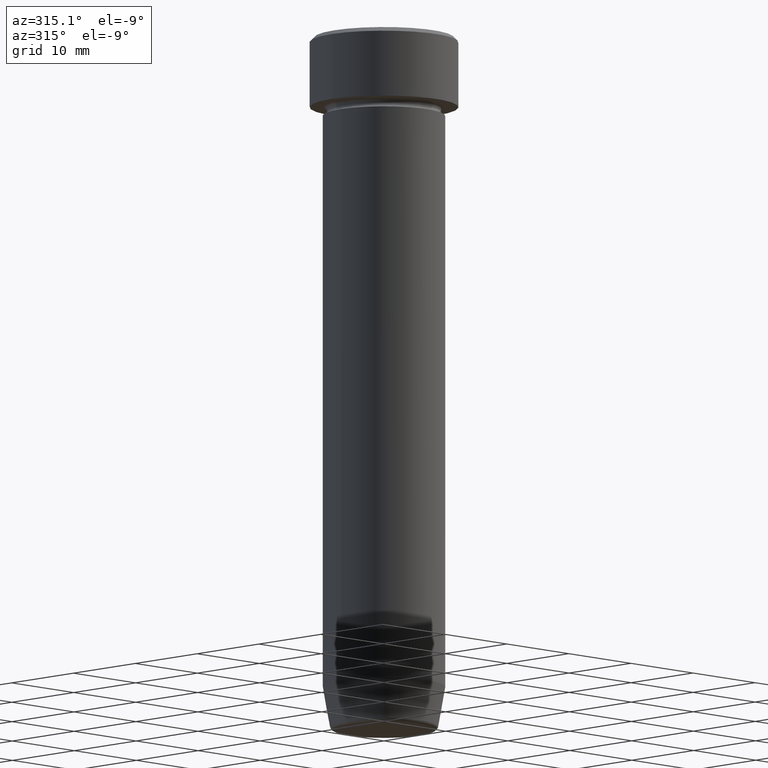
[diagram: clean part render]
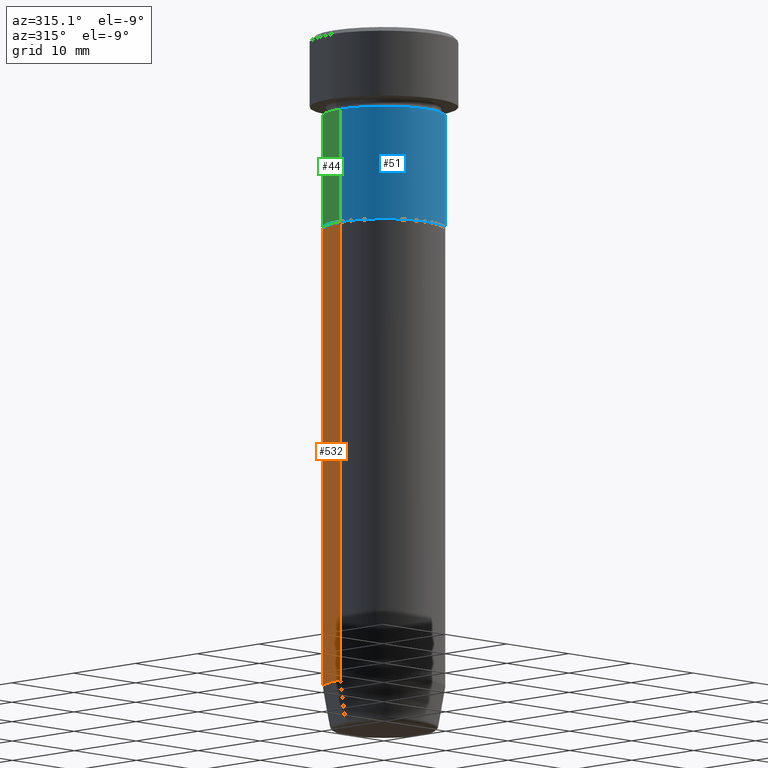
[diagram: same view with three faces highlighted in distinct colors, each labeled with its STEP entity id]
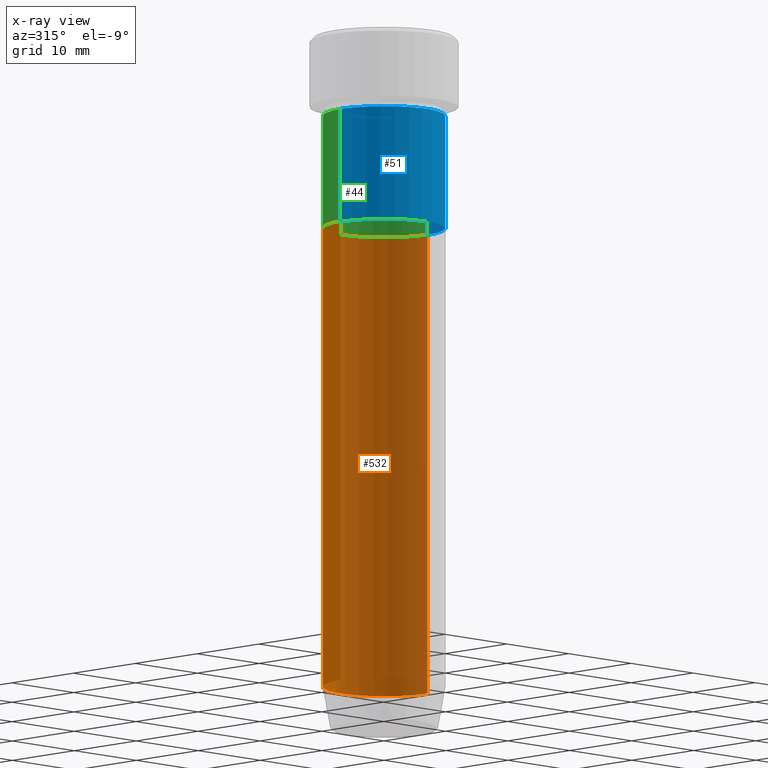
[diagram: x-ray of the same camera — body ghosted, the three highlighted faces saturated]
A machine part, auxiliary view with three faces highlighted in distinct colors.
The next image is the same camera in x-ray (body ghosted, the three faces saturated) — at least one of them is partly hidden behind the body in this view.
Their STEP definitions:

[orange] entity #532 — the highlighted cylindrical surface (partial cylindrical patch) has radius 7 mm, axis along (-0, -0, 1).
#24 = CARTESIAN_POINT ( 'NONE',  ( -6.999999999999999112, 8.572527594031472204E-16, -75.00000000000000000 ) ) ;
#35 = ORIENTED_EDGE ( 'NONE', *, *, #419, .F. ) ;
#39 = AXIS2_PLACEMENT_3D ( 'NONE', #230, #378, #380 ) ;
#41 = CARTESIAN_POINT ( 'NONE',  ( -6.999999999999999112, 8.572527594031472204E-16, 0.000000000000000000 ) ) ;
#74 = DIRECTION ( 'NONE',  ( 1.000000000000000000, 0.000000000000000000, 0.000000000000000000 ) ) ;
#133 = VECTOR ( 'NONE', #576, 1000.000000000000000 ) ;
#134 = EDGE_CURVE ( 'NONE', #276, #158, #207, .T. ) ;
#154 = VERTEX_POINT ( 'NONE', #24 ) ;
#158 = VERTEX_POINT ( 'NONE', #241 ) ;
#167 = CARTESIAN_POINT ( 'NONE',  ( 6.999999999999999112, 0.000000000000000000, -22.00000000000000000 ) ) ;
#178 = CYLINDRICAL_SURFACE ( 'NONE', #580, 6.999999999999999112 ) ;
#187 = LINE ( 'NONE', #377, #133 ) ;
#188 = DIRECTION ( 'NONE',  ( -0.000000000000000000, -0.000000000000000000, 1.000000000000000000 ) ) ;
#207 = CIRCLE ( 'NONE', #567, 6.999999999999999112 ) ;
#230 = CARTESIAN_POINT ( 'NONE',  ( 0.000000000000000000, 0.000000000000000000, -75.00000000000000000 ) ) ;
#241 = CARTESIAN_POINT ( 'NONE',  ( -6.999999999999999112, 8.572527594031472204E-16, -22.00000000000000000 ) ) ;
#242 = DIRECTION ( 'NONE',  ( 1.000000000000000000, 0.000000000000000000, 0.000000000000000000 ) ) ;
#273 = EDGE_LOOP ( 'NONE', ( #507, #503, #504, #35 ) ) ;
#276 = VERTEX_POINT ( 'NONE', #167 ) ;
#348 = DIRECTION ( 'NONE',  ( -0.000000000000000000, -0.000000000000000000, 1.000000000000000000 ) ) ;
#373 = CARTESIAN_POINT ( 'NONE',  ( 0.000000000000000000, 0.000000000000000000, 0.000000000000000000 ) ) ;
#377 = CARTESIAN_POINT ( 'NONE',  ( 6.999999999999999112, 0.000000000000000000, 0.000000000000000000 ) ) ;
#378 = DIRECTION ( 'NONE',  ( -0.000000000000000000, -0.000000000000000000, 1.000000000000000000 ) ) ;
#380 = DIRECTION ( 'NONE',  ( 1.000000000000000000, 0.000000000000000000, 0.000000000000000000 ) ) ;
#419 = EDGE_CURVE ( 'NONE', #488, #276, #187, .T. ) ;
#458 = EDGE_CURVE ( 'NONE', #154, #158, #482, .T. ) ;
#472 = VECTOR ( 'NONE', #348, 1000.000000000000000 ) ;
#482 = LINE ( 'NONE', #41, #472 ) ;
#487 = DIRECTION ( 'NONE',  ( -0.000000000000000000, -0.000000000000000000, 1.000000000000000000 ) ) ;
#488 = VERTEX_POINT ( 'NONE', #535 ) ;
#503 = ORIENTED_EDGE ( 'NONE', *, *, #458, .T. ) ;
#504 = ORIENTED_EDGE ( 'NONE', *, *, #134, .F. ) ;
#507 = ORIENTED_EDGE ( 'NONE', *, *, #531, .T. ) ;
#531 = EDGE_CURVE ( 'NONE', #488, #154, #543, .T. ) ;
#532 = ADVANCED_FACE ( 'NONE', ( #577 ), #178, .T. ) ;
#535 = CARTESIAN_POINT ( 'NONE',  ( 6.999999999999999112, 0.000000000000000000, -75.00000000000000000 ) ) ;
#540 = CARTESIAN_POINT ( 'NONE',  ( 0.000000000000000000, 0.000000000000000000, -22.00000000000000000 ) ) ;
#543 = CIRCLE ( 'NONE', #39, 6.999999999999999112 ) ;
#567 = AXIS2_PLACEMENT_3D ( 'NONE', #540, #487, #74 ) ;
#576 = DIRECTION ( 'NONE',  ( -0.000000000000000000, -0.000000000000000000, 1.000000000000000000 ) ) ;
#577 = FACE_OUTER_BOUND ( 'NONE', #273, .T. ) ;
#580 = AXIS2_PLACEMENT_3D ( 'NONE', #373, #188, #242 ) ;

[blue] entity #51 — the highlighted cylindrical surface (partial cylindrical patch) has radius 7 mm, axis along (-0, -0, 1).
#1 = CARTESIAN_POINT ( 'NONE',  ( 0.000000000000000000, 0.000000000000000000, -22.00000000000000000 ) ) ;
#13 = CARTESIAN_POINT ( 'NONE',  ( -7.000000000000000888, 8.572527594031474176E-16, -9.000000000000001776 ) ) ;
#20 = LINE ( 'NONE', #409, #103 ) ;
#29 = EDGE_CURVE ( 'NONE', #541, #38, #196, .T. ) ;
#38 = VERTEX_POINT ( 'NONE', #262 ) ;
#51 = ADVANCED_FACE ( 'NONE', ( #84 ), #212, .T. ) ;
#53 = CARTESIAN_POINT ( 'NONE',  ( -6.999999999999999112, 8.572527594031472204E-16, -22.00000000000000000 ) ) ;
#75 = EDGE_LOOP ( 'NONE', ( #284, #227, #215, #595 ) ) ;
#84 = FACE_OUTER_BOUND ( 'NONE', #75, .T. ) ;
#97 = EDGE_CURVE ( 'NONE', #386, #541, #455, .T. ) ;
#103 = VECTOR ( 'NONE', #190, 1000.000000000000000 ) ;
#110 = DIRECTION ( 'NONE',  ( -0.000000000000000000, -0.000000000000000000, 1.000000000000000000 ) ) ;
#160 = CARTESIAN_POINT ( 'NONE',  ( 6.999999999999999112, 0.000000000000000000, 0.000000000000000000 ) ) ;
#185 = CIRCLE ( 'NONE', #366, 7.000000000000000000 ) ;
#190 = DIRECTION ( 'NONE',  ( -0.000000000000000000, -0.000000000000000000, 1.000000000000000000 ) ) ;
#196 = LINE ( 'NONE', #160, #410 ) ;
#206 = DIRECTION ( 'NONE',  ( -0.000000000000000000, -0.000000000000000000, 1.000000000000000000 ) ) ;
#212 = CYLINDRICAL_SURFACE ( 'NONE', #387, 6.999999999999999112 ) ;
#215 = ORIENTED_EDGE ( 'NONE', *, *, #29, .T. ) ;
#216 = CARTESIAN_POINT ( 'NONE',  ( 0.000000000000000000, 0.000000000000000000, -9.000000000000001776 ) ) ;
#227 = ORIENTED_EDGE ( 'NONE', *, *, #97, .T. ) ;
#262 = CARTESIAN_POINT ( 'NONE',  ( 7.000000000000000000, 0.000000000000000000, -9.000000000000001776 ) ) ;
#274 = DIRECTION ( 'NONE',  ( 1.000000000000000000, 0.000000000000000000, 0.000000000000000000 ) ) ;
#284 = ORIENTED_EDGE ( 'NONE', *, *, #433, .F. ) ;
#300 = VERTEX_POINT ( 'NONE', #13 ) ;
#347 = DIRECTION ( 'NONE',  ( 1.000000000000000000, 0.000000000000000000, 0.000000000000000000 ) ) ;
#366 = AXIS2_PLACEMENT_3D ( 'NONE', #216, #491, #401 ) ;
#385 = DIRECTION ( 'NONE',  ( -0.000000000000000000, -0.000000000000000000, 1.000000000000000000 ) ) ;
#386 = VERTEX_POINT ( 'NONE', #53 ) ;
#387 = AXIS2_PLACEMENT_3D ( 'NONE', #493, #206, #274 ) ;
#393 = AXIS2_PLACEMENT_3D ( 'NONE', #1, #110, #347 ) ;
#401 = DIRECTION ( 'NONE',  ( 1.000000000000000000, 0.000000000000000000, 0.000000000000000000 ) ) ;
#409 = CARTESIAN_POINT ( 'NONE',  ( -6.999999999999999112, 8.572527594031472204E-16, 0.000000000000000000 ) ) ;
#410 = VECTOR ( 'NONE', #385, 1000.000000000000000 ) ;
#433 = EDGE_CURVE ( 'NONE', #386, #300, #20, .T. ) ;
#455 = CIRCLE ( 'NONE', #393, 6.999999999999999112 ) ;
#467 = EDGE_CURVE ( 'NONE', #300, #38, #185, .T. ) ;
#491 = DIRECTION ( 'NONE',  ( -0.000000000000000000, -0.000000000000000000, 1.000000000000000000 ) ) ;
#493 = CARTESIAN_POINT ( 'NONE',  ( 0.000000000000000000, 0.000000000000000000, 0.000000000000000000 ) ) ;
#515 = CARTESIAN_POINT ( 'NONE',  ( 6.999999999999999112, 0.000000000000000000, -22.00000000000000000 ) ) ;
#541 = VERTEX_POINT ( 'NONE', #515 ) ;
#595 = ORIENTED_EDGE ( 'NONE', *, *, #467, .F. ) ;

[green] entity #44 — the highlighted cylindrical surface (partial cylindrical patch) has radius 7 mm, axis along (-0, -0, 1).
#13 = CARTESIAN_POINT ( 'NONE',  ( -7.000000000000000888, 8.572527594031474176E-16, -9.000000000000001776 ) ) ;
#20 = LINE ( 'NONE', #409, #103 ) ;
#29 = EDGE_CURVE ( 'NONE', #541, #38, #196, .T. ) ;
#38 = VERTEX_POINT ( 'NONE', #262 ) ;
#44 = ADVANCED_FACE ( 'NONE', ( #303 ), #72, .T. ) ;
#53 = CARTESIAN_POINT ( 'NONE',  ( -6.999999999999999112, 8.572527594031472204E-16, -22.00000000000000000 ) ) ;
#72 = CYLINDRICAL_SURFACE ( 'NONE', #195, 6.999999999999999112 ) ;
#95 = DIRECTION ( 'NONE',  ( -0.000000000000000000, -0.000000000000000000, 1.000000000000000000 ) ) ;
#103 = VECTOR ( 'NONE', #190, 1000.000000000000000 ) ;
#119 = EDGE_LOOP ( 'NONE', ( #551, #263, #555, #208 ) ) ;
#120 = AXIS2_PLACEMENT_3D ( 'NONE', #181, #95, #570 ) ;
#160 = CARTESIAN_POINT ( 'NONE',  ( 6.999999999999999112, 0.000000000000000000, 0.000000000000000000 ) ) ;
#181 = CARTESIAN_POINT ( 'NONE',  ( 0.000000000000000000, 0.000000000000000000, -9.000000000000001776 ) ) ;
#190 = DIRECTION ( 'NONE',  ( -0.000000000000000000, -0.000000000000000000, 1.000000000000000000 ) ) ;
#195 = AXIS2_PLACEMENT_3D ( 'NONE', #588, #447, #220 ) ;
#196 = LINE ( 'NONE', #160, #410 ) ;
#208 = ORIENTED_EDGE ( 'NONE', *, *, #29, .F. ) ;
#220 = DIRECTION ( 'NONE',  ( 1.000000000000000000, 0.000000000000000000, 0.000000000000000000 ) ) ;
#245 = CIRCLE ( 'NONE', #395, 6.999999999999999112 ) ;
#262 = CARTESIAN_POINT ( 'NONE',  ( 7.000000000000000000, 0.000000000000000000, -9.000000000000001776 ) ) ;
#263 = ORIENTED_EDGE ( 'NONE', *, *, #433, .T. ) ;
#300 = VERTEX_POINT ( 'NONE', #13 ) ;
#303 = FACE_OUTER_BOUND ( 'NONE', #119, .T. ) ;
#342 = EDGE_CURVE ( 'NONE', #38, #300, #399, .T. ) ;
#351 = EDGE_CURVE ( 'NONE', #541, #386, #245, .T. ) ;
#372 = DIRECTION ( 'NONE',  ( 1.000000000000000000, 0.000000000000000000, 0.000000000000000000 ) ) ;
#385 = DIRECTION ( 'NONE',  ( -0.000000000000000000, -0.000000000000000000, 1.000000000000000000 ) ) ;
#386 = VERTEX_POINT ( 'NONE', #53 ) ;
#395 = AXIS2_PLACEMENT_3D ( 'NONE', #573, #457, #372 ) ;
#399 = CIRCLE ( 'NONE', #120, 7.000000000000000000 ) ;
#409 = CARTESIAN_POINT ( 'NONE',  ( -6.999999999999999112, 8.572527594031472204E-16, 0.000000000000000000 ) ) ;
#410 = VECTOR ( 'NONE', #385, 1000.000000000000000 ) ;
#433 = EDGE_CURVE ( 'NONE', #386, #300, #20, .T. ) ;
#447 = DIRECTION ( 'NONE',  ( -0.000000000000000000, -0.000000000000000000, 1.000000000000000000 ) ) ;
#457 = DIRECTION ( 'NONE',  ( -0.000000000000000000, -0.000000000000000000, 1.000000000000000000 ) ) ;
#515 = CARTESIAN_POINT ( 'NONE',  ( 6.999999999999999112, 0.000000000000000000, -22.00000000000000000 ) ) ;
#541 = VERTEX_POINT ( 'NONE', #515 ) ;
#551 = ORIENTED_EDGE ( 'NONE', *, *, #351, .T. ) ;
#555 = ORIENTED_EDGE ( 'NONE', *, *, #342, .F. ) ;
#570 = DIRECTION ( 'NONE',  ( 1.000000000000000000, 0.000000000000000000, 0.000000000000000000 ) ) ;
#573 = CARTESIAN_POINT ( 'NONE',  ( 0.000000000000000000, 0.000000000000000000, -22.00000000000000000 ) ) ;
#588 = CARTESIAN_POINT ( 'NONE',  ( 0.000000000000000000, 0.000000000000000000, 0.000000000000000000 ) ) ;